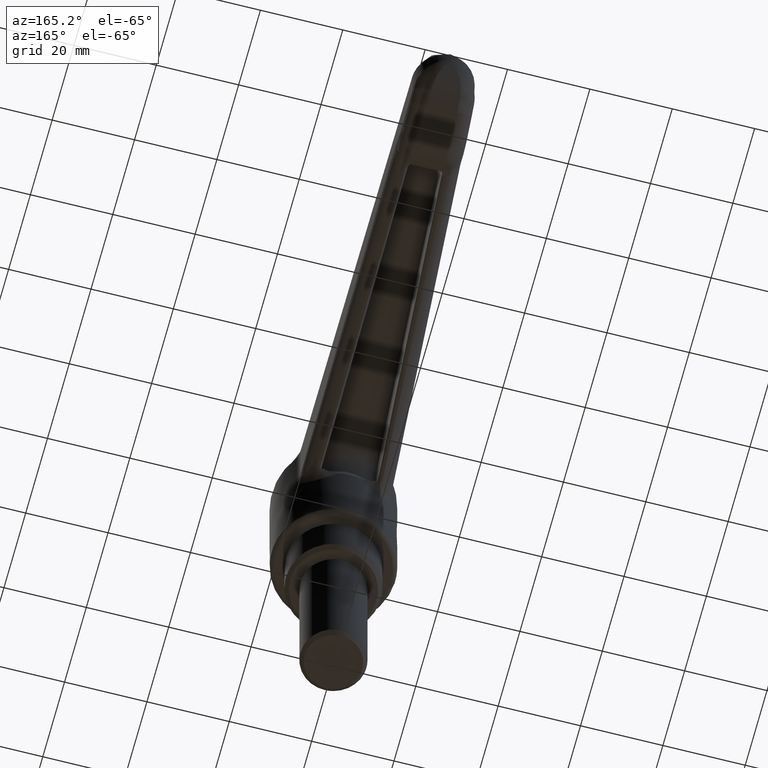
[diagram: clean part render]
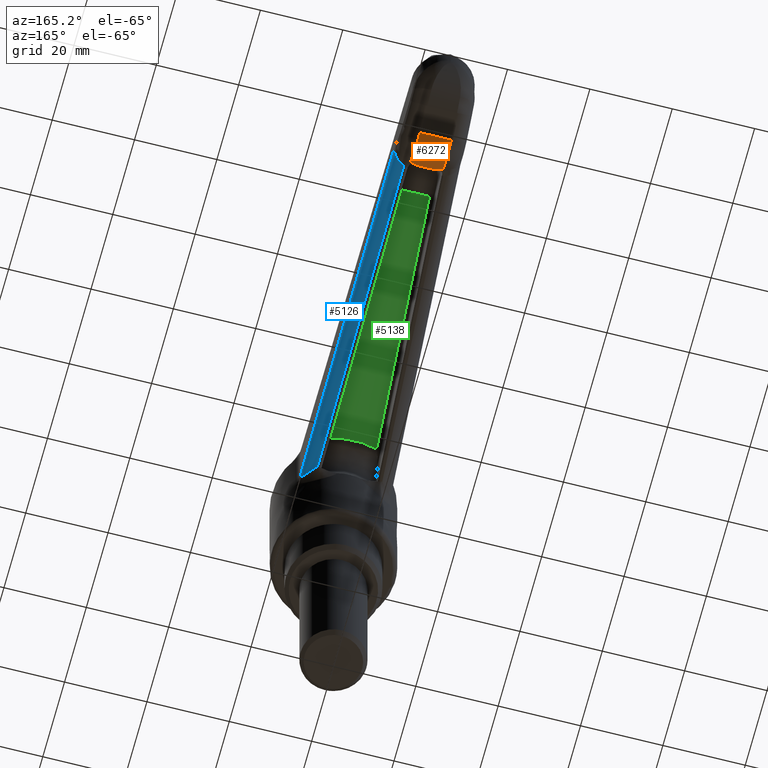
[diagram: same view with three faces highlighted in distinct colors, each labeled with its STEP entity id]
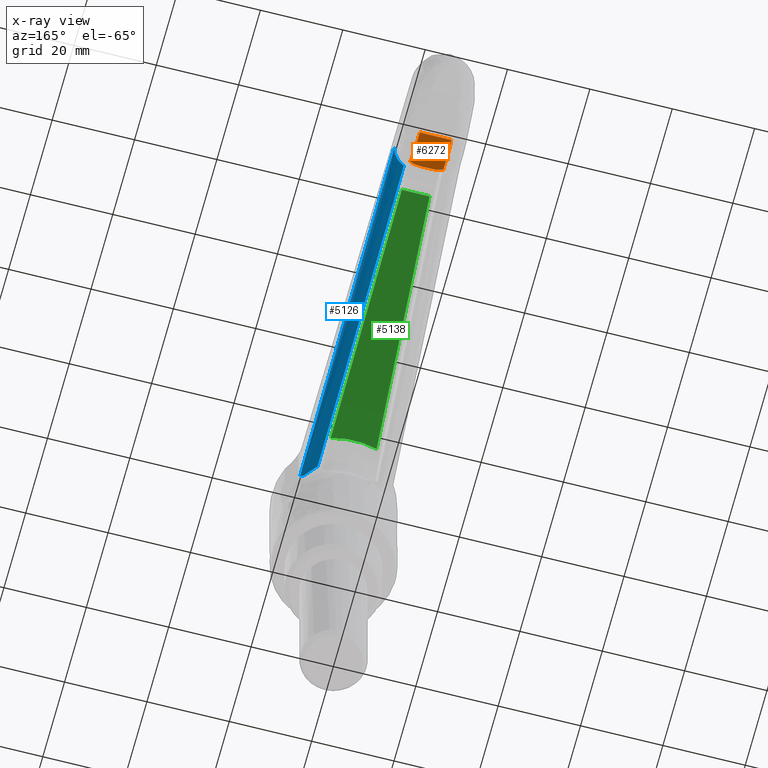
[diagram: x-ray of the same camera — body ghosted, the three highlighted faces saturated]
A machine part, auxiliary view with three faces highlighted in distinct colors.
The next image is the same camera in x-ray (body ghosted, the three faces saturated) — at least one of them is partly hidden behind the body in this view.
Their STEP definitions:

[orange] entity #6272 — the highlighted face is a freeform B-spline surface patch.
#3470=CARTESIAN_POINT('',(85.0,1.201644101867850,58.388900999999798));
#3471=VERTEX_POINT('',#3470);
#3506=CARTESIAN_POINT('',(85.741499314340089,4.000598507765585,57.949332688269699));
#3507=VERTEX_POINT('',#3506);
#3517=CARTESIAN_POINT('',(85.0,1.201644101867850,58.388900999999798));
#3518=CARTESIAN_POINT('',(85.000000000000043,1.451121176060211,58.388900999999798));
#3519=CARTESIAN_POINT('',(85.016955119159221,1.697174583661097,58.377771616391207));
#3520=CARTESIAN_POINT('',(85.081682559562026,2.183129487519399,58.336068303143357));
#3521=CARTESIAN_POINT('',(85.129489071883469,2.423024588029788,58.305477553822683));
#3522=CARTESIAN_POINT('',(85.208497654756385,2.719173198140331,58.256449377987842));
#3523=CARTESIAN_POINT('',(85.225299174459167,2.778314436492452,58.246084512044440));
#3524=CARTESIAN_POINT('',(85.260665901689535,2.895590539176088,58.224426281121467));
#3525=CARTESIAN_POINT('',(85.316366282363859,3.070053622154440,58.190543130986583));
#3526=CARTESIAN_POINT('',(85.379900632437938,3.240277676752761,58.152741665418638));
#3527=CARTESIAN_POINT('',(85.471475365326853,3.463626842031907,58.099308533133510));
#3528=CARTESIAN_POINT('',(85.520694991998582,3.573492660032919,58.071075672292523));
#3529=CARTESIAN_POINT('',(85.599662556134064,3.735662336654799,58.026781895160930));
#3530=CARTESIAN_POINT('',(85.640431730535113,3.816089541459113,58.004148847822371));
#3531=CARTESIAN_POINT('',(85.683133268000944,3.895543607136959,57.980849040560827));
#3532=CARTESIAN_POINT('',(85.712031147643245,3.948298112911730,57.965174726428437));
#3533=CARTESIAN_POINT('',(85.726829787830951,3.974742762444273,57.957195021647429));
#3534=CARTESIAN_POINT('',(85.741499314340089,4.000598507765571,57.949332688269699));
#3535=B_SPLINE_CURVE_WITH_KNOTS('',3,(#3517,#3518,#3519,#3520,#3521,#3522,#3523,#3524,#3525,#3526,#3527,#3528,#3529,#3530,#3531,#3532,#3533,#3534),.UNSPECIFIED.,.F.,.U.,(4,2,2,2,1,2,2,1,2,4),(0.0,0.250000000000006,0.500000000000011,0.562500000000010,0.625000000000010,0.750000000000010,0.875000000000010,0.937500000000009,0.968750000000004,1.0),.UNSPECIFIED.);
#3536=EDGE_CURVE('',#3471,#3507,#3535,.T.);
#3903=CARTESIAN_POINT('',(85.0,-1.201644101863964,58.388900999999798));
#3904=VERTEX_POINT('',#3903);
#3914=CARTESIAN_POINT('',(85.741499314340089,-4.000598507765695,57.949332688269600));
#3915=VERTEX_POINT('',#3914);
#3916=CARTESIAN_POINT('',(85.741499314340089,-4.000598507765690,57.949332688269699));
#3917=CARTESIAN_POINT('',(85.726831457649666,-3.974745705579550,57.957194126685238));
#3918=CARTESIAN_POINT('',(85.712030985142320,-3.948297835102516,57.965174812830888));
#3919=CARTESIAN_POINT('',(85.683131795941307,-3.895540900953761,57.980849840750132));
#3920=CARTESIAN_POINT('',(85.640428055189929,-3.816082618768670,58.004150860715619));
#3921=CARTESIAN_POINT('',(85.599656035218189,-3.735649426008141,58.026785518551009));
#3922=CARTESIAN_POINT('',(85.520682124237595,-3.573465272531307,58.071082958505372));
#3923=CARTESIAN_POINT('',(85.471457390090677,-3.463586472941752,58.099318855226713));
#3924=CARTESIAN_POINT('',(85.379871791955196,-3.240203861350939,58.152758660012168));
#3925=CARTESIAN_POINT('',(85.316328801012943,-3.069949113923967,58.190565582130432));
#3926=CARTESIAN_POINT('',(85.260620393700506,-2.895445807174596,58.224454012982548));
#3927=CARTESIAN_POINT('',(85.225248622767012,-2.778140617710774,58.246115606545729));
#3928=CARTESIAN_POINT('',(85.208453431806277,-2.719013684954871,58.256476720342619));
#3929=CARTESIAN_POINT('',(85.129471815726376,-2.422934875726494,58.305488662057918));
#3930=CARTESIAN_POINT('',(85.081675096827354,-2.183081118827489,58.336073094417152));
#3931=CARTESIAN_POINT('',(85.016956376868222,-1.697176366080501,58.377770822961807));
#3932=CARTESIAN_POINT('',(84.999999999999901,-1.451131834169450,58.388900999999898));
#3933=CARTESIAN_POINT('',(85.0,-1.201644101863964,58.388900999999798));
#3934=B_SPLINE_CURVE_WITH_KNOTS('',3,(#3916,#3917,#3918,#3919,#3920,#3921,#3922,#3923,#3924,#3925,#3926,#3927,#3928,#3929,#3930,#3931,#3932,#3933),.UNSPECIFIED.,.F.,.U.,(4,2,1,2,2,1,2,2,2,4),(0.0,0.031250000000006,0.062500000000012,0.125000000000016,0.250000000000016,0.375000000000016,0.437500000000014,0.500000000000012,0.750000000000006,1.0),.UNSPECIFIED.);
#3935=EDGE_CURVE('',#3915,#3904,#3934,.T.);
#5194=CARTESIAN_POINT('',(85.0,1.201644101867850,58.388900999999798));
#5195=CARTESIAN_POINT('',(85.0,-1.201644101863964,58.388900999999798));
#5196=QUASI_UNIFORM_CURVE('',1,(#5194,#5195),.UNSPECIFIED.,.F.,.U.);
#5197=EDGE_CURVE('',#3471,#3904,#5196,.T.);
#5305=CARTESIAN_POINT('',(93.885614088630305,-3.811508412570725,57.366287896852100));
#5306=VERTEX_POINT('',#5305);
#5307=CARTESIAN_POINT('',(93.885614088630362,-3.811508412570730,57.366287896852100));
#5308=CARTESIAN_POINT('',(89.683184063512030,-3.909080452690840,55.836732833829203));
#5309=CARTESIAN_POINT('',(85.741499314340231,-4.000598507765696,57.949332688269600));
#5317=(BOUNDED_CURVE()B_SPLINE_CURVE(2,(#5307,#5308,#5309),.UNSPECIFIED.,.F.,.U.)CURVE()GEOMETRIC_REPRESENTATION_ITEM()QUASI_UNIFORM_CURVE()RATIONAL_B_SPLINE_CURVE((1.0,0.912871093466098,1.0))REPRESENTATION_ITEM(''));
#5318=EDGE_CURVE('',#5306,#3915,#5317,.T.);
#6108=CARTESIAN_POINT('',(93.885614088630305,3.811508412570565,57.366287896852100));
#6109=VERTEX_POINT('',#6108);
#6186=CARTESIAN_POINT('',(85.741499314340047,4.000598507765591,57.949332688269699));
#6187=CARTESIAN_POINT('',(89.683184063511874,3.909080452690733,55.836732833829167));
#6188=CARTESIAN_POINT('',(93.885614088630305,3.811508412570621,57.366287896852079));
#6196=(BOUNDED_CURVE()B_SPLINE_CURVE(2,(#6186,#6187,#6188),.UNSPECIFIED.,.F.,.U.)CURVE()GEOMETRIC_REPRESENTATION_ITEM()QUASI_UNIFORM_CURVE()RATIONAL_B_SPLINE_CURVE((1.0,0.912871093466079,1.0))REPRESENTATION_ITEM(''));
#6197=EDGE_CURVE('',#3507,#6109,#6196,.T.);
#6246=CARTESIAN_POINT('',(94.130425007933269,4.200628433153868,57.459038199701162));
#6247=CARTESIAN_POINT('',(94.130425007933269,-4.205629181288684,57.459038199701162));
#6248=CARTESIAN_POINT('',(89.059070008291627,4.200628433153869,55.461383728504920));
#6249=CARTESIAN_POINT('',(89.059070008291627,-4.205629181288685,55.461383728504920));
#6250=CARTESIAN_POINT('',(84.631950608862894,4.200628433153868,58.640987279560029));
#6251=CARTESIAN_POINT('',(84.631950608862894,-4.205629181288683,58.640987279560029));
#6259=(BOUNDED_SURFACE()B_SPLINE_SURFACE(1,2,((#6246,#6248,#6250),(#6247,#6249,#6251)),.UNSPECIFIED.,.F.,.F.,.U.)B_SPLINE_SURFACE_WITH_KNOTS((2,2),(3,3),(0.0,8.406257614442552),(0.0,10.193307727435050),.UNSPECIFIED.)GEOMETRIC_REPRESENTATION_ITEM()RATIONAL_B_SPLINE_SURFACE(((1.0,0.876452892359483,0.996387235560807),(1.0,0.876452892359483,0.996387235560807)))REPRESENTATION_ITEM('')SURFACE());
#6260=ORIENTED_EDGE('',*,*,#5318,.T.);
#6261=ORIENTED_EDGE('',*,*,#3935,.T.);
#6262=ORIENTED_EDGE('',*,*,#5197,.F.);
#6263=ORIENTED_EDGE('',*,*,#3536,.T.);
#6264=ORIENTED_EDGE('',*,*,#6197,.T.);
#6265=CARTESIAN_POINT('',(93.885614088630305,-3.811508412570725,57.366287896852100));
#6266=CARTESIAN_POINT('',(93.885614088630305,3.811508412570565,57.366287896852100));
#6267=QUASI_UNIFORM_CURVE('',1,(#6265,#6266),.UNSPECIFIED.,.F.,.U.);
#6268=EDGE_CURVE('',#5306,#6109,#6267,.T.);
#6269=ORIENTED_EDGE('',*,*,#6268,.F.);
#6270=EDGE_LOOP('',(#6260,#6261,#6262,#6263,#6264,#6269));
#6271=FACE_OUTER_BOUND('',#6270,.T.);
#6272=ADVANCED_FACE('',(#6271),#6259,.T.);

[blue] entity #5126 — the highlighted face is a freeform B-spline surface patch.
#3747=CARTESIAN_POINT('',(86.751688532695795,-8.037621317903300,62.176774970644807));
#3748=VERTEX_POINT('',#3747);
#3791=CARTESIAN_POINT('',(84.259056724530907,-5.171537693151341,58.119219735736600));
#3792=VERTEX_POINT('',#3791);
#3793=CARTESIAN_POINT('',(84.259056724531007,-5.171537693151341,58.119219735736600));
#3794=CARTESIAN_POINT('',(84.351970455523599,-5.402402874040035,58.153037563998367));
#3795=CARTESIAN_POINT('',(84.444074299749090,-5.623783285917354,58.215404639726437));
#3796=CARTESIAN_POINT('',(84.584964630661105,-5.941760406796505,58.346429758511441));
#3797=CARTESIAN_POINT('',(84.632369426582997,-6.045389311426457,58.396410892641761));
#3798=CARTESIAN_POINT('',(84.728643090022956,-6.247770437942194,58.508689682623100));
#3799=CARTESIAN_POINT('',(84.776822656220361,-6.345059846074616,58.570188796880053));
#3800=CARTESIAN_POINT('',(84.921748974158461,-6.624789933370407,58.768616065644501));
#3801=CARTESIAN_POINT('',(85.019134816053167,-6.795689152966753,58.919656982354212));
#3802=CARTESIAN_POINT('',(85.144160658802534,-6.990777168753496,59.129138610436243));
#3803=CARTESIAN_POINT('',(85.169349090613835,-7.028884029987110,59.172114349835610));
#3804=CARTESIAN_POINT('',(85.219680792462569,-7.102621520763133,59.259354479244799));
#3805=CARTESIAN_POINT('',(85.244876377347310,-7.138336233466596,59.303705087056990));
#3806=CARTESIAN_POINT('',(85.320633303119095,-7.242133502817627,59.438830161878784));
#3807=CARTESIAN_POINT('',(85.371365797982008,-7.306875004510300,59.531673586853287));
#3808=CARTESIAN_POINT('',(85.473683790620655,-7.427896668640199,59.722373053353010));
#3809=CARTESIAN_POINT('',(85.525268486021503,-7.484175342701922,59.820230492135913));
#3810=CARTESIAN_POINT('',(85.629664010785064,-7.588550461661448,60.020575440165949));
#3811=CARTESIAN_POINT('',(85.682651542344146,-7.636780944171973,60.123411454498843));
#3812=CARTESIAN_POINT('',(85.842384741990813,-7.768144997726100,60.435237051473557));
#3813=CARTESIAN_POINT('',(85.949953981486601,-7.838228224967408,60.647568238094692));
#3814=CARTESIAN_POINT('',(86.114892597340486,-7.919838918200507,60.970952042276153));
#3815=CARTESIAN_POINT('',(86.170466710152851,-7.943104837935039,61.079567946956892));
#3816=CARTESIAN_POINT('',(86.283116378614821,-7.982035630256475,61.298204143352010));
#3817=CARTESIAN_POINT('',(86.340297160418430,-7.997712254654759,61.408423533930559));
#3818=CARTESIAN_POINT('',(86.455636144875442,-8.021514762545762,61.628454766328467));
#3819=CARTESIAN_POINT('',(86.513858229254296,-8.029677472310366,61.738394579310771));
#3820=CARTESIAN_POINT('',(86.602236772255196,-8.036594981218716,61.903058426846897));
#3821=CARTESIAN_POINT('',(86.646687339948244,-8.038721039513254,61.985328975604610));
#3822=CARTESIAN_POINT('',(86.691570437833605,-8.038892371835265,62.067483181496932));
#3823=CARTESIAN_POINT('',(86.721593169846969,-8.038576639316444,62.122224108296187));
#3824=CARTESIAN_POINT('',(86.736738597633888,-8.038199830674271,62.149709927018627));
#3825=CARTESIAN_POINT('',(86.751688532695795,-8.037621317903110,62.176774970644807));
#3826=B_SPLINE_CURVE_WITH_KNOTS('',3,(#3793,#3794,#3795,#3796,#3797,#3798,#3799,#3800,#3801,#3802,#3803,#3804,#3805,#3806,#3807,#3808,#3809,#3810,#3811,#3812,#3813,#3814,#3815,#3816,#3817,#3818,#3819,#3820,#3821,#3822,#3823,#3824,#3825),.UNSPECIFIED.,.F.,.U.,(4,2,2,2,2,2,2,2,2,2,2,2,2,2,1,2,4),(0.0,0.124999999999996,0.187499999999994,0.249999999999991,0.374999999999986,0.406249999999987,0.437499999999988,0.499999999999990,0.562499999999992,0.624999999999994,0.749999999999998,0.812500000000000,0.875000000000002,0.937500000000004,0.968750000000004,0.984375000000002,1.0),.UNSPECIFIED.);
#3827=EDGE_CURVE('',#3792,#3748,#3826,.T.);
#4705=CARTESIAN_POINT('',(15.174490516233950,-7.844880665933810,32.974497092379202));
#4706=VERTEX_POINT('',#4705);
#4714=CARTESIAN_POINT('',(11.250690499999600,-10.959258864561560,34.696662421268712));
#4715=VERTEX_POINT('',#4714);
#4716=CARTESIAN_POINT('',(11.250690499999640,-10.959258864561541,34.696662421268648));
#4717=CARTESIAN_POINT('',(11.214732394132220,-10.960650323680570,34.571545030453301));
#4718=CARTESIAN_POINT('',(11.190997901050670,-10.956170973370821,34.444786910574663));
#4719=CARTESIAN_POINT('',(11.183735538796270,-10.939597529126740,34.283342363655578));
#4720=CARTESIAN_POINT('',(11.183430518311980,-10.935712649018400,34.250850296556273));
#4721=CARTESIAN_POINT('',(11.185309770592919,-10.926804507148971,34.186326461434263));
#4722=CARTESIAN_POINT('',(11.187486218074669,-10.921774016777769,34.154206180770167));
#4723=CARTESIAN_POINT('',(11.197944139549911,-10.904825919081480,34.058298991448837));
#4724=CARTESIAN_POINT('',(11.210010095721950,-10.891291322841150,33.996325256258153));
#4725=CARTESIAN_POINT('',(11.235640014682890,-10.867555496954260,33.906334576236681));
#4726=CARTESIAN_POINT('',(11.245438508010110,-10.859070582271290,33.876831025467091));
#4727=CARTESIAN_POINT('',(11.267526539223081,-10.840936087343771,33.818810151132851));
#4728=CARTESIAN_POINT('',(11.279866185760991,-10.831248946334661,33.790192439696142));
#4729=CARTESIAN_POINT('',(11.320221541780860,-10.800685634932201,33.706565277702460));
#4730=CARTESIAN_POINT('',(11.351336374304260,-10.778470336036939,33.654134761023208));
#4731=CARTESIAN_POINT('',(11.403393778905381,-10.742608546701099,33.579815513268379));
#4732=CARTESIAN_POINT('',(11.421692293269730,-10.730200495150900,33.555718188696389));
#4733=CARTESIAN_POINT('',(11.459462914476010,-10.704893016524199,33.509451394741568));
#4734=CARTESIAN_POINT('',(11.478981911355421,-10.691960473275641,33.487206176630117));
#4735=CARTESIAN_POINT('',(11.539210118633511,-10.652380583363691,33.422846149657097));
#4736=CARTESIAN_POINT('',(11.581580909401270,-10.624953702981280,33.383094532709329));
#4737=CARTESIAN_POINT('',(11.713961525863819,-10.539857549826239,33.271575828942979));
#4738=CARTESIAN_POINT('',(11.809632301710559,-10.479095032568530,33.207243002891040));
#4739=CARTESIAN_POINT('',(11.957534092921071,-10.384642073937959,33.123239222835842));
#4740=CARTESIAN_POINT('',(12.007722697528690,-10.352515149014661,33.097250442573269));
#4741=CARTESIAN_POINT('',(12.108553677152431,-10.287656127711470,33.049128363520992));
#4742=CARTESIAN_POINT('',(12.159298581046480,-10.254859486509140,33.026933679524781));
#4743=CARTESIAN_POINT('',(12.312251594809879,-10.155360117278640,32.965091835829213));
#4744=CARTESIAN_POINT('',(12.415164508423731,-10.087549209191030,32.930140405077267));
#4745=CARTESIAN_POINT('',(12.621947708701800,-9.948889259234885,32.869953277187797));
#4746=CARTESIAN_POINT('',(12.725826263841300,-9.878039890661611,32.844745074690870));
#4747=CARTESIAN_POINT('',(12.933989033906080,-9.733182032668113,32.802520699296750));
#4748=CARTESIAN_POINT('',(13.038557346798770,-9.658966748438701,32.785487920298863));
#4749=CARTESIAN_POINT('',(13.245980627414720,-9.508507157250238,32.758951260443631));
#4750=CARTESIAN_POINT('',(13.348883322962120,-9.432241359424932,32.749417254371117));
#4751=CARTESIAN_POINT('',(13.655006081568910,-9.200140905427874,32.730885444996673));
#4752=CARTESIAN_POINT('',(13.855636418886821,-9.040998116969112,32.731846361074048));
#4753=CARTESIAN_POINT('',(14.150911202024220,-8.795054570629132,32.751694555715218));
#4754=CARTESIAN_POINT('',(14.248392394889320,-8.711870103293911,32.761411032450432));
#4755=CARTESIAN_POINT('',(14.441398603714299,-8.543007663724891,32.787113188679257));
#4756=CARTESIAN_POINT('',(14.536769806875821,-8.457456076945329,32.803091511971211));
#4757=CARTESIAN_POINT('',(14.817874738199350,-8.198859676342911,32.860263908854137));
#4758=CARTESIAN_POINT('',(14.999218603338781,-8.023314916090694,32.910703341056632));
#4759=CARTESIAN_POINT('',(15.174490516233950,-7.844880665933810,32.974497092379202));
#4760=B_SPLINE_CURVE_WITH_KNOTS('',3,(#4716,#4717,#4718,#4719,#4720,#4721,#4722,#4723,#4724,#4725,#4726,#4727,#4728,#4729,#4730,#4731,#4732,#4733,#4734,#4735,#4736,#4737,#4738,#4739,#4740,#4741,#4742,#4743,#4744,#4745,#4746,#4747,#4748,#4749,#4750,#4751,#4752,#4753,#4754,#4755,#4756,#4757,#4758,#4759),.UNSPECIFIED.,.F.,.U.,(4,2,2,2,2,2,2,2,2,2,2,2,2,2,2,2,2,2,2,2,2,4),(0.0,0.062500000000007,0.078125000000009,0.093750000000011,0.125000000000015,0.140625000000017,0.156250000000018,0.187500000000021,0.203125000000022,0.218750000000022,0.250000000000020,0.312500000000018,0.343750000000017,0.375000000000016,0.437500000000015,0.500000000000013,0.562500000000012,0.625000000000010,0.750000000000007,0.812500000000005,0.875000000000003,1.0),.UNSPECIFIED.);
#4761=EDGE_CURVE('',#4715,#4706,#4760,.T.);
#5098=CARTESIAN_POINT('',(88.618883604339800,-7.964338283469478,62.939956252378707));
#5099=CARTESIAN_POINT('',(9.021174445210155,-11.044504927181951,33.968762978640427));
#5100=CARTESIAN_POINT('',(89.720529339564848,-8.005985306711413,59.917636935748597));
#5101=CARTESIAN_POINT('',(10.122820180435246,-11.086151950423906,30.946443662010321));
#5102=CARTESIAN_POINT('',(89.548322039452231,-4.796199491567197,60.049513843685197));
#5103=CARTESIAN_POINT('',(9.950612880322634,-7.876366135279689,31.078320569946911));
#5111=(BOUNDED_SURFACE()B_SPLINE_SURFACE(1,2,((#5098,#5100,#5102),(#5099,#5101,#5103)),.UNSPECIFIED.,.F.,.F.,.U.)B_SPLINE_SURFACE_WITH_KNOTS((2,2),(3,3),(0.0,84.762095122989550),(0.0,5.217748499531197),.UNSPECIFIED.)GEOMETRIC_REPRESENTATION_ITEM()RATIONAL_B_SPLINE_SURFACE(((1.0,0.681998360062498,1.0),(1.0,0.681998360062498,1.0)))REPRESENTATION_ITEM('')SURFACE());
#5112=CARTESIAN_POINT('',(84.259056724530907,-5.171537693151341,58.119219735736600));
#5113=CARTESIAN_POINT('',(15.174490516233950,-7.844880665933810,32.974497092379202));
#5114=QUASI_UNIFORM_CURVE('',1,(#5112,#5113),.UNSPECIFIED.,.F.,.U.);
#5115=EDGE_CURVE('',#3792,#4706,#5114,.T.);
#5116=ORIENTED_EDGE('',*,*,#5115,.F.);
#5117=ORIENTED_EDGE('',*,*,#3827,.T.);
#5118=CARTESIAN_POINT('',(11.250690499999600,-10.959258864561560,34.696662421268712));
#5119=CARTESIAN_POINT('',(86.751688532695795,-8.037621317903300,62.176774970644807));
#5120=QUASI_UNIFORM_CURVE('',1,(#5118,#5119),.UNSPECIFIED.,.F.,.U.);
#5121=EDGE_CURVE('',#4715,#3748,#5120,.T.);
#5122=ORIENTED_EDGE('',*,*,#5121,.F.);
#5123=ORIENTED_EDGE('',*,*,#4761,.T.);
#5124=EDGE_LOOP('',(#5116,#5117,#5122,#5123));
#5125=FACE_OUTER_BOUND('',#5124,.T.);
#5126=ADVANCED_FACE('',(#5125),#5111,.T.);

[green] entity #5138 — the highlighted face is a freeform B-spline surface patch.
#2735=CARTESIAN_POINT('',(75.685990866509400,3.356642118530815,63.512301389045803));
#2736=VERTEX_POINT('',#2735);
#2802=CARTESIAN_POINT('',(18.620410927119948,5.564890292236240,42.742131453666552));
#2803=VERTEX_POINT('',#2802);
#2804=CARTESIAN_POINT('',(18.620410927119948,5.564890292236240,42.742131453666552));
#2805=CARTESIAN_POINT('',(75.685990866509400,3.356642118530815,63.512301389045803));
#2806=QUASI_UNIFORM_CURVE('',1,(#2804,#2805),.UNSPECIFIED.,.F.,.U.);
#2807=EDGE_CURVE('',#2803,#2736,#2806,.T.);
#2876=CARTESIAN_POINT('',(75.685990866509400,-3.356642118530595,63.512301389045803));
#2877=VERTEX_POINT('',#2876);
#2998=CARTESIAN_POINT('',(18.620410927119998,-5.564890292236000,42.742131453666602));
#2999=VERTEX_POINT('',#2998);
#3026=CARTESIAN_POINT('',(75.685990866509400,-3.356642118530595,63.512301389045803));
#3027=CARTESIAN_POINT('',(18.620410927119998,-5.564890292236000,42.742131453666602));
#3028=QUASI_UNIFORM_CURVE('',1,(#3026,#3027),.UNSPECIFIED.,.F.,.U.);
#3029=EDGE_CURVE('',#2877,#2999,#3028,.T.);
#3361=CARTESIAN_POINT('',(18.620410927120009,-5.564890292236000,42.742131453666602));
#3362=CARTESIAN_POINT('',(20.001694028884557,1.222980E-013,43.244877325749023));
#3363=CARTESIAN_POINT('',(18.620410927119948,5.564890292236233,42.742131453666580));
#3371=(BOUNDED_CURVE()B_SPLINE_CURVE(2,(#3361,#3362,#3363),.UNSPECIFIED.,.F.,.U.)CURVE()GEOMETRIC_REPRESENTATION_ITEM()QUASI_UNIFORM_CURVE()RATIONAL_B_SPLINE_CURVE((1.0,0.966839549618724,1.0))REPRESENTATION_ITEM(''));
#3372=EDGE_CURVE('',#2999,#2803,#3371,.T.);
#3964=CARTESIAN_POINT('',(75.685990866509400,3.356642118530815,63.512301389045803));
#3965=CARTESIAN_POINT('',(75.685990866509400,-3.356642118530595,63.512301389045803));
#3966=QUASI_UNIFORM_CURVE('',1,(#3964,#3965),.UNSPECIFIED.,.F.,.U.);
#3967=EDGE_CURVE('',#2736,#2877,#3966,.T.);
#5127=CARTESIAN_POINT('',(15.769984987939100,6.120822915337371,41.704661384881149));
#5128=CARTESIAN_POINT('',(15.769984987939100,-6.120823114353118,41.704661384881149));
#5129=CARTESIAN_POINT('',(78.536413744453967,6.120822915337371,64.549770343632517));
#5130=CARTESIAN_POINT('',(78.536413744453967,-6.120823114353118,64.549770343632517));
#5131=B_SPLINE_SURFACE_WITH_KNOTS('',1,1,((#5127,#5129),(#5128,#5130)),.UNSPECIFIED.,.F.,.F.,.U.,(2,2),(2,2),(0.0,12.241646029690489),(0.0,66.794637375944177),.UNSPECIFIED.);
#5132=ORIENTED_EDGE('',*,*,#3372,.T.);
#5133=ORIENTED_EDGE('',*,*,#2807,.T.);
#5134=ORIENTED_EDGE('',*,*,#3967,.T.);
#5135=ORIENTED_EDGE('',*,*,#3029,.T.);
#5136=EDGE_LOOP('',(#5132,#5133,#5134,#5135));
#5137=FACE_OUTER_BOUND('',#5136,.T.);
#5138=ADVANCED_FACE('',(#5137),#5131,.F.);